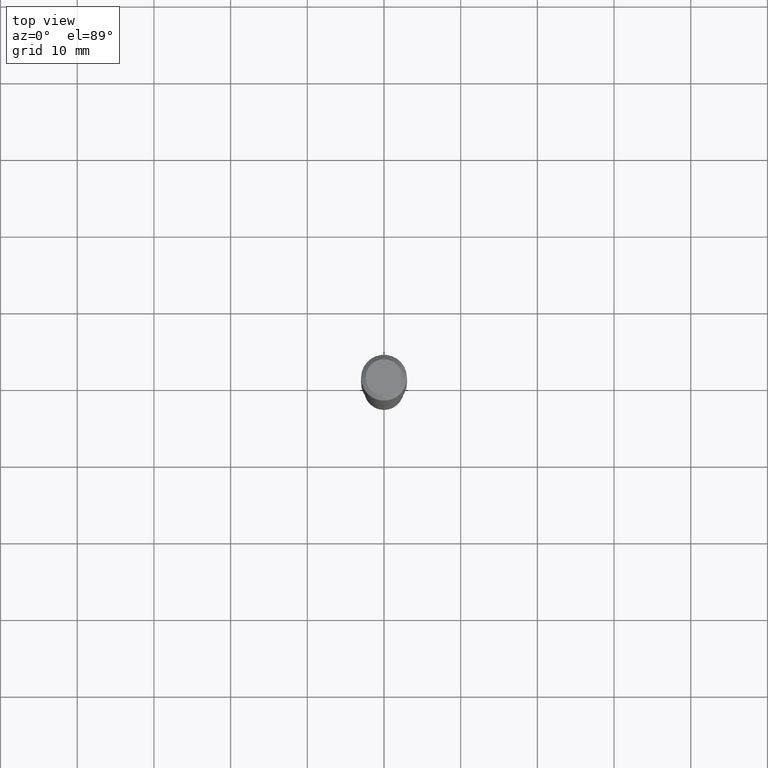
[diagram: clean part render]
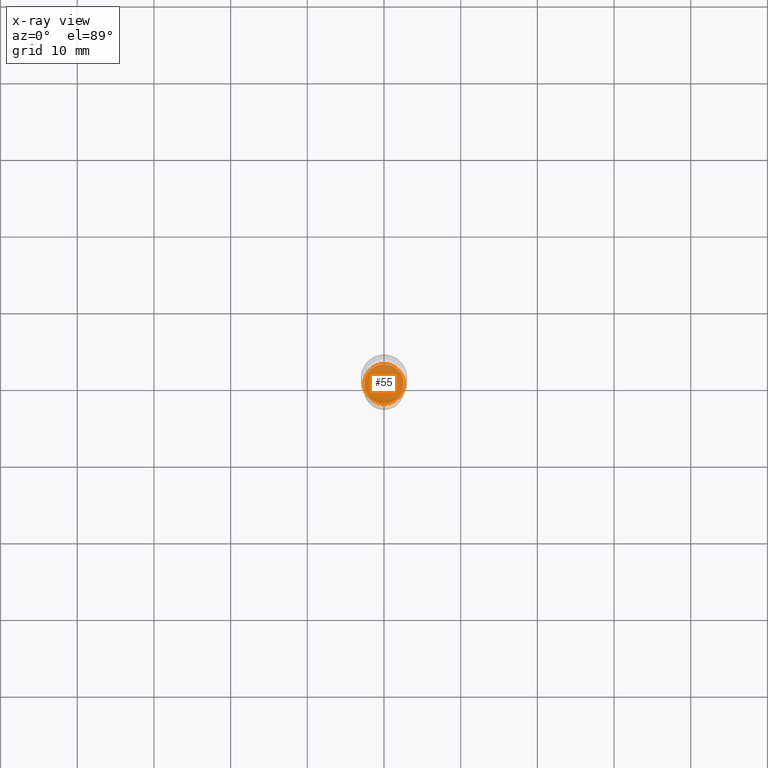
[diagram: x-ray — body ghosted, one internal face saturated and labeled with its STEP entity id]
A machine part, top view, then the same camera in x-ray: the body is ghosted and one INTERNAL B-rep face — a face not visible from any outside direction — is saturated and labeled: STEP entity #55.
In plain terms, the highlighted planar face has unit normal (-0, 0, 1).
Its self-contained STEP definition (entity closure, byte-faithful):
#4 = EDGE_LOOP ( 'NONE', ( #161, #128 ) ) ;
#7 = CARTESIAN_POINT ( 'NONE',  ( -0.1010500000000000009, -5.739984407735665328E-15, -1.850400000000000489 ) ) ;
#15 = DIRECTION ( 'NONE',  ( 1.000000000000000000, -6.982962677686269077E-15, 0.000000000000000000 ) ) ;
#23 = PLANE ( 'NONE',  #403 ) ;
#37 = CIRCLE ( 'NONE', #115, 0.1010500000000000009 ) ;
#55 = ADVANCED_FACE ( 'NONE', ( #364 ), #23, .F. ) ;
#90 = AXIS2_PLACEMENT_3D ( 'NONE', #301, #413, #299 ) ;
#95 = DIRECTION ( 'NONE',  ( -2.438088387897960049E-29, 3.491481338843145188E-15, 1.000000000000000000 ) ) ;
#114 = CARTESIAN_POINT ( 'NONE',  ( 0.1010500000000000009, -7.166265447975555351E-15, -1.850400000000000489 ) ) ;
#115 = AXIS2_PLACEMENT_3D ( 'NONE', #268, #311, #15 ) ;
#128 = ORIENTED_EDGE ( 'NONE', *, *, #138, .F. ) ;
#129 = CIRCLE ( 'NONE', #90, 0.1010500000000000009 ) ;
#138 = EDGE_CURVE ( 'NONE', #269, #358, #129, .T. ) ;
#161 = ORIENTED_EDGE ( 'NONE', *, *, #420, .F. ) ;
#251 = DIRECTION ( 'NONE',  ( 1.000000000000000000, -6.982962677686265922E-15, 4.876176775795935793E-29 ) ) ;
#268 = CARTESIAN_POINT ( 'NONE',  ( 4.525095478964977954E-29, -6.460637069395358365E-15, -1.850400000000000489 ) ) ;
#269 = VERTEX_POINT ( 'NONE', #7 ) ;
#299 = DIRECTION ( 'NONE',  ( 1.000000000000000000, -6.982962677686269077E-15, 0.000000000000000000 ) ) ;
#301 = CARTESIAN_POINT ( 'NONE',  ( 4.525095478964977954E-29, -6.460637069395358365E-15, -1.850400000000000489 ) ) ;
#311 = DIRECTION ( 'NONE',  ( -2.445468806185136597E-29, 3.491481338843145583E-15, 1.000000000000000000 ) ) ;
#358 = VERTEX_POINT ( 'NONE', #114 ) ;
#364 = FACE_OUTER_BOUND ( 'NONE', #4, .T. ) ;
#403 = AXIS2_PLACEMENT_3D ( 'NONE', #475, #95, #251 ) ;
#413 = DIRECTION ( 'NONE',  ( -2.445468806185136597E-29, 3.491481338843145583E-15, 1.000000000000000000 ) ) ;
#420 = EDGE_CURVE ( 'NONE', #358, #269, #37, .T. ) ;
#475 = CARTESIAN_POINT ( 'NONE',  ( 1.031878573310231231E-29, -1.146312249985191851E-14, -1.850400000000000489 ) ) ;